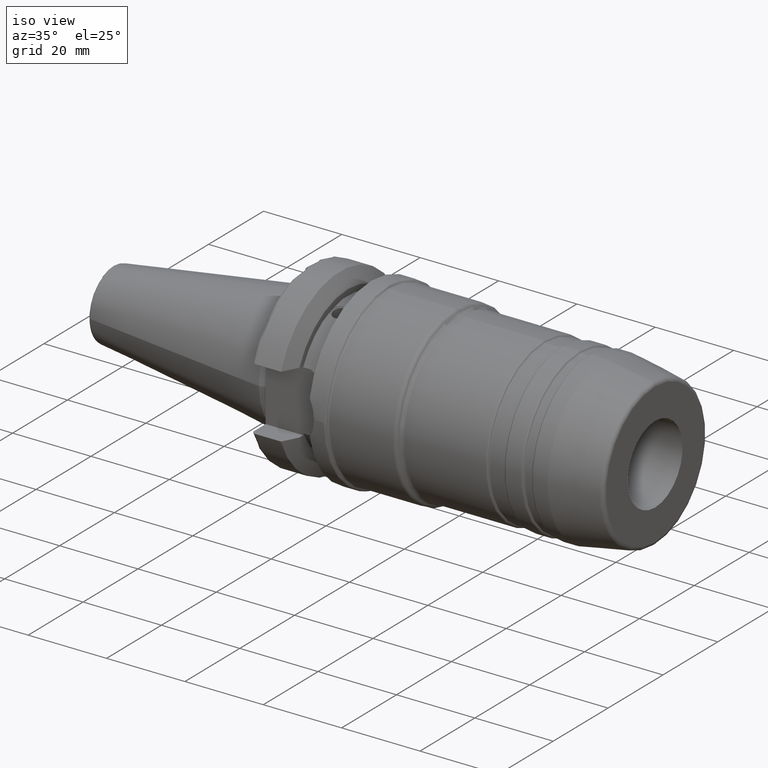
[diagram: clean part render]
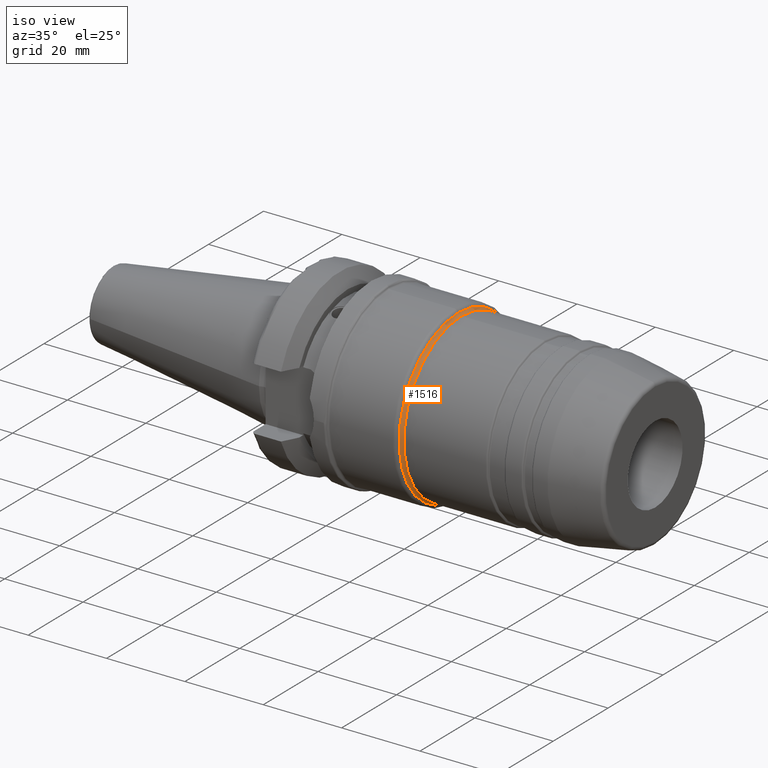
[diagram: same view with one face highlighted and labeled with its STEP entity id]
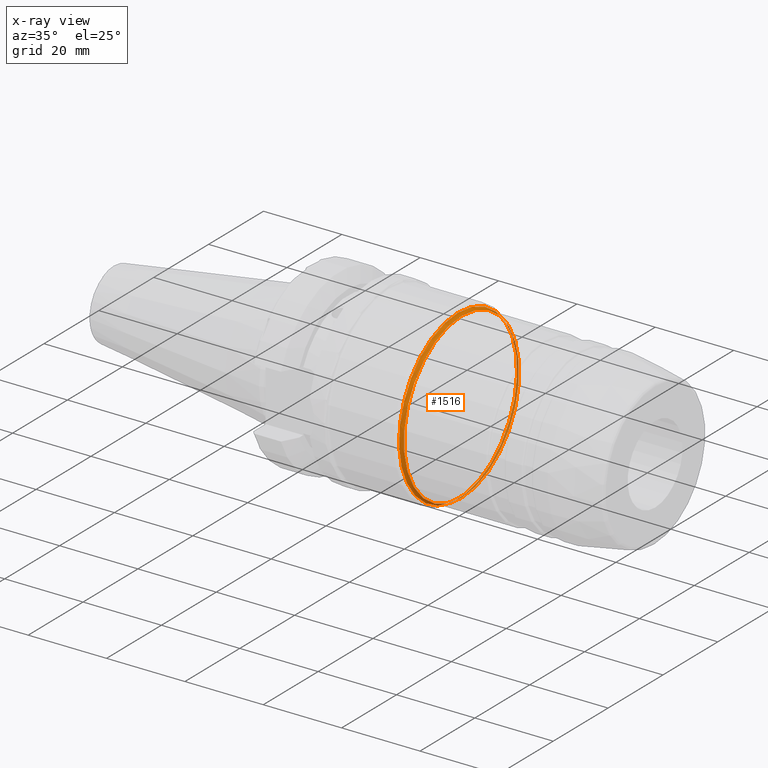
[diagram: x-ray of the same camera — body ghosted, the highlighted face saturated]
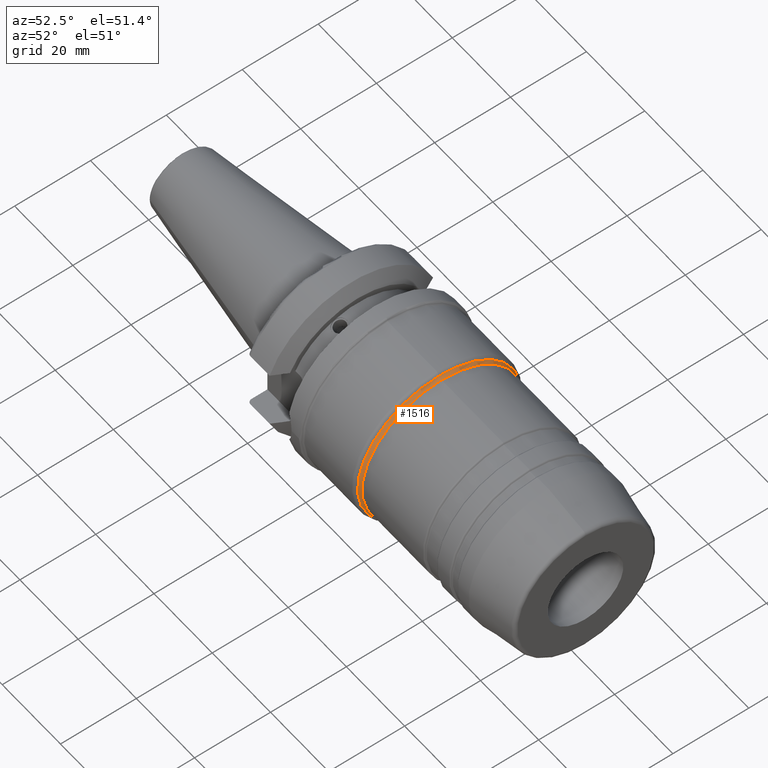
[diagram: same view with one face highlighted and labeled with its STEP entity id]
A machine part, iso view. The second image highlights one B-rep face of the part: STEP entity #1516.
The next image is the same camera in x-ray: the body ghosted, the highlighted face saturated — about 24% of this face is hidden behind the body in this view.
A second angle (auxiliary view) of the same face is appended — the face is thin or edge-on in the first view.
In plain terms, the highlighted toroidal blend (fillet) surface has major radius 22 mm and minor (blend) radius 1 mm.
Its self-contained STEP definition (entity closure, byte-faithful):
#328=FACE_OUTER_BOUND('',#423,.T.);
#423=EDGE_LOOP('',(#1084,#1085,#1086,#1087));
#526=CIRCLE('',#1643,21.);
#540=CIRCLE('',#1666,21.5);
#541=CIRCLE('',#1668,1.);
#629=VERTEX_POINT('',#2409);
#638=VERTEX_POINT('',#2445);
#787=EDGE_CURVE('',#629,#629,#526,.T.);
#804=EDGE_CURVE('',#638,#638,#540,.T.);
#806=EDGE_CURVE('',#638,#629,#541,.T.);
#1084=ORIENTED_EDGE('',*,*,#804,.T.);
#1085=ORIENTED_EDGE('',*,*,#806,.T.);
#1086=ORIENTED_EDGE('',*,*,#787,.T.);
#1087=ORIENTED_EDGE('',*,*,#806,.F.);
#1486=TOROIDAL_SURFACE('',#1667,22.,1.);
#1516=ADVANCED_FACE('',(#328),#1486,.F.);
#1643=AXIS2_PLACEMENT_3D('',#2411,#1905,#1906);
#1666=AXIS2_PLACEMENT_3D('',#2446,#1954,#1955);
#1667=AXIS2_PLACEMENT_3D('',#2448,#1957,#1958);
#1668=AXIS2_PLACEMENT_3D('',#2449,#1959,#1960);
#1905=DIRECTION('center_axis',(-1.,0.,0.));
#1906=DIRECTION('ref_axis',(0.,1.22464679914735E-16,1.));
#1954=DIRECTION('center_axis',(1.,0.,0.));
#1955=DIRECTION('ref_axis',(0.,0.,1.));
#1957=DIRECTION('center_axis',(1.,0.,0.));
#1958=DIRECTION('ref_axis',(0.,0.,-1.));
#1959=DIRECTION('center_axis',(0.,-1.,-1.22464679914735E-16));
#1960=DIRECTION('ref_axis',(0.,-1.22464679914735E-16,1.));
#2409=CARTESIAN_POINT('',(40.5773502691896,-2.57175827820944E-15,21.));
#2411=CARTESIAN_POINT('Origin',(40.5773502691896,0.,0.));
#2445=CARTESIAN_POINT('',(39.7113248654052,-2.63299061816681E-15,21.5));
#2446=CARTESIAN_POINT('Origin',(39.7113248654052,-2.63299061816681E-15,
0.));
#2448=CARTESIAN_POINT('Origin',(40.5773502691896,0.,0.));
#2449=CARTESIAN_POINT('Origin',(40.5773502691896,-2.69422295812418E-15,
22.));